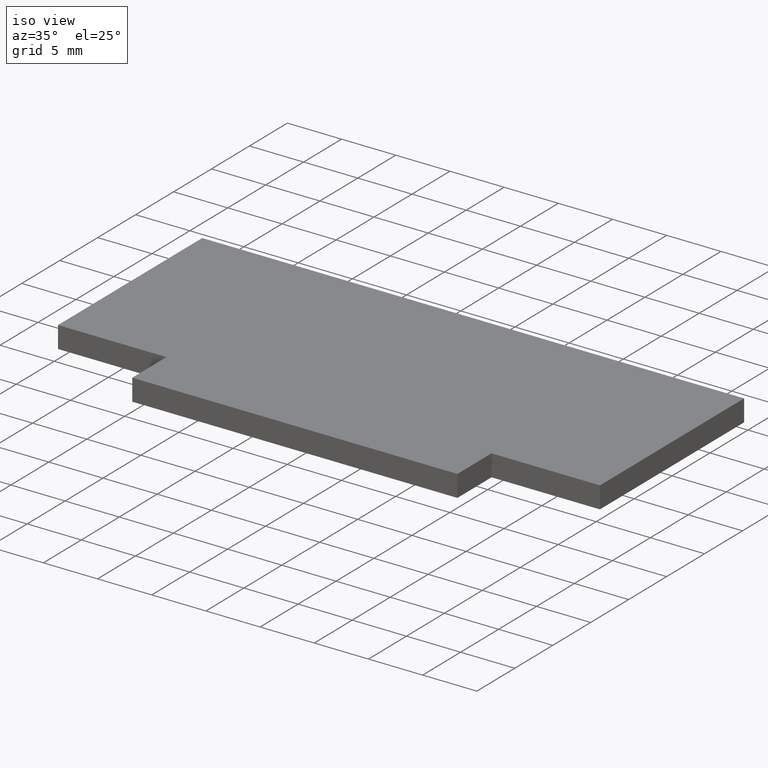
[diagram: clean part render]
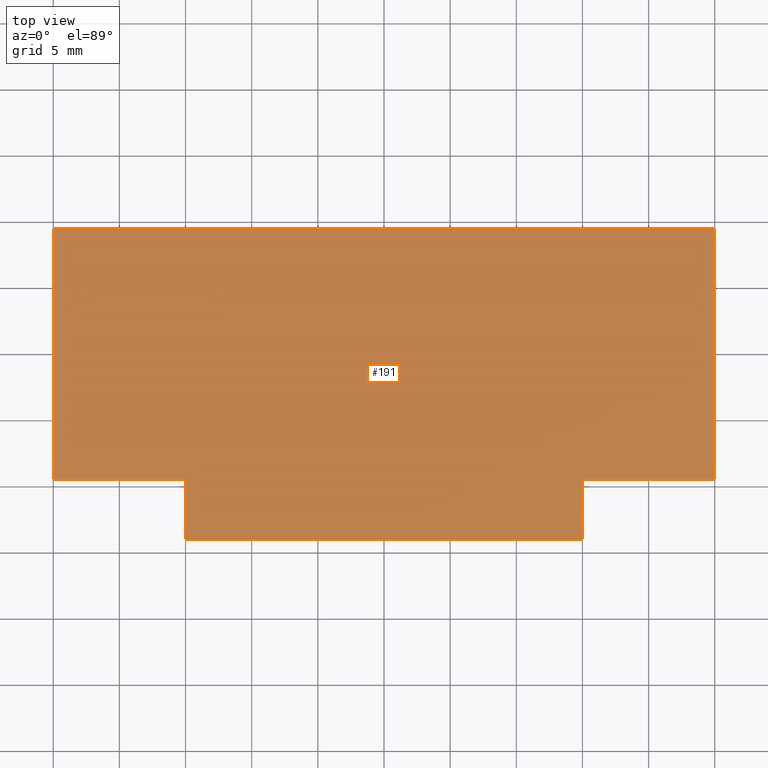
[diagram: tour spotlight — one face highlighted and labeled with its STEP entity id]
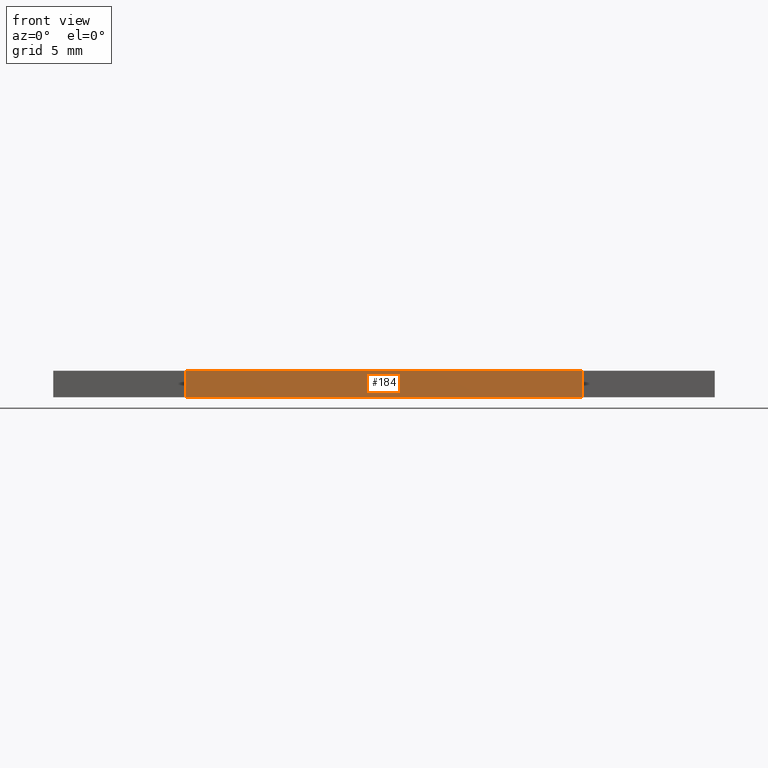
[diagram: tour spotlight — one face highlighted and labeled with its STEP entity id]
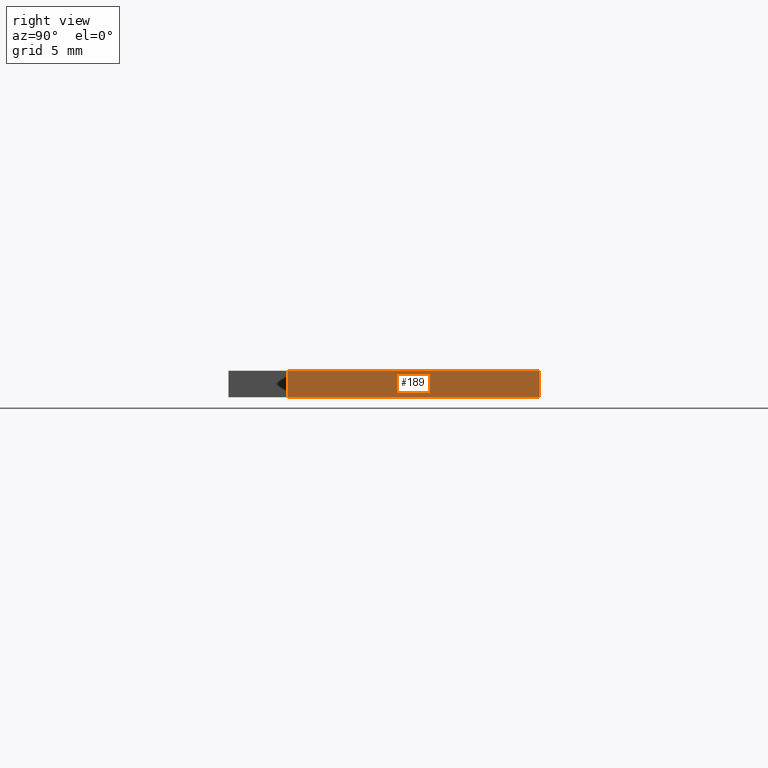
[diagram: tour spotlight — one face highlighted and labeled with its STEP entity id]
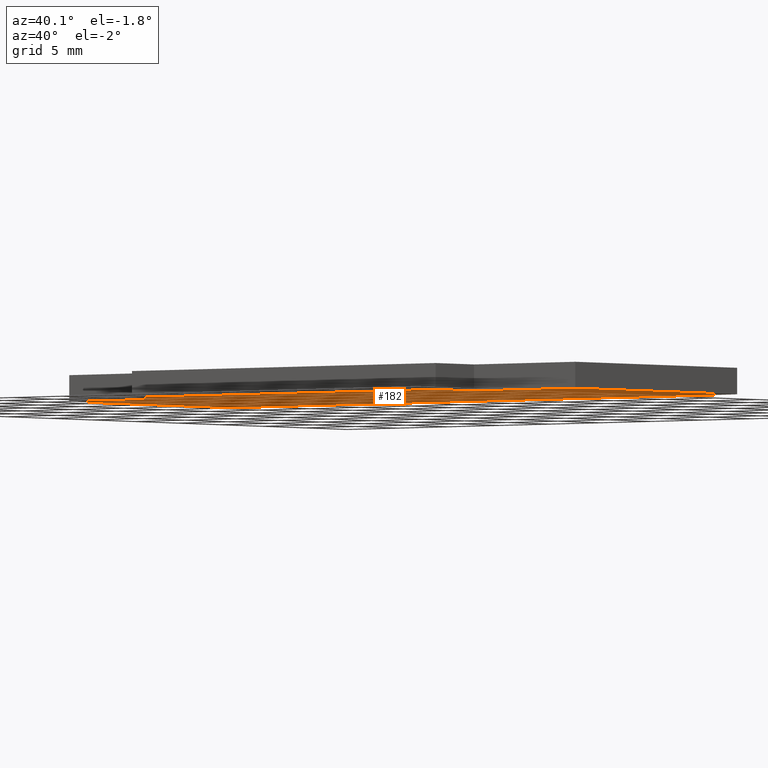
[diagram: tour spotlight — one face highlighted and labeled with its STEP entity id]
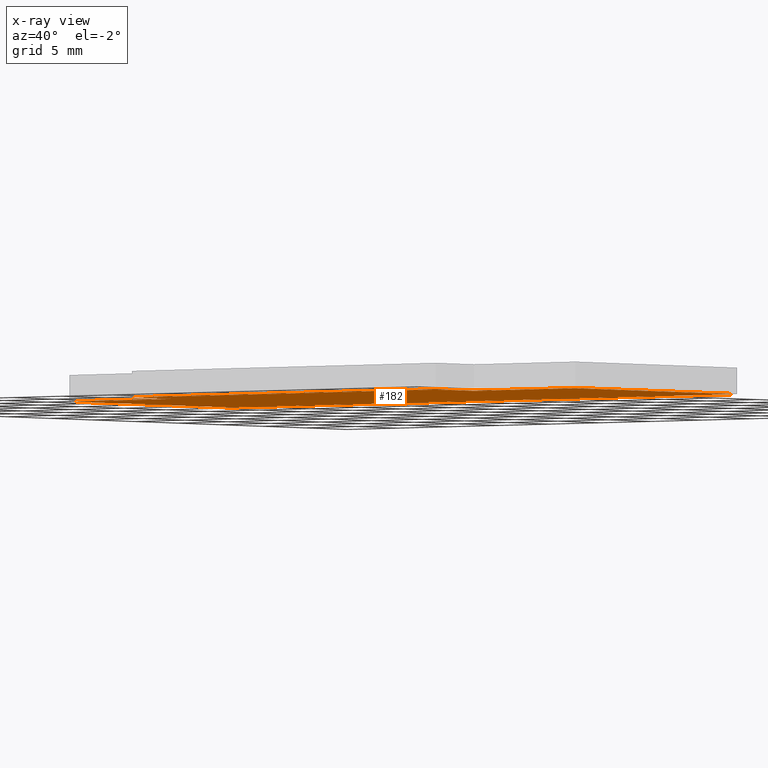
[diagram: x-ray of the same camera — body ghosted, this tour face saturated]
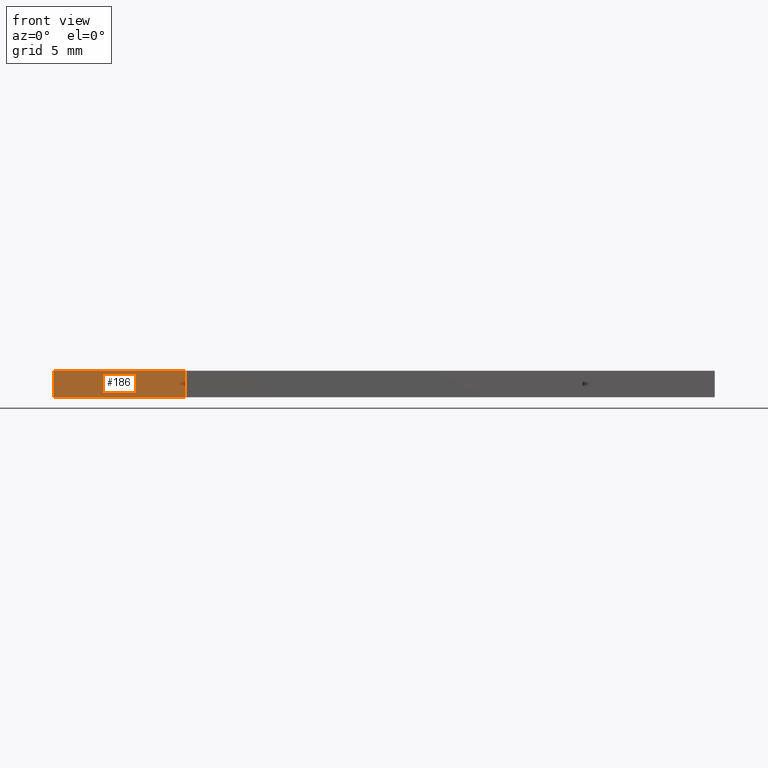
[diagram: tour spotlight — one face highlighted and labeled with its STEP entity id]
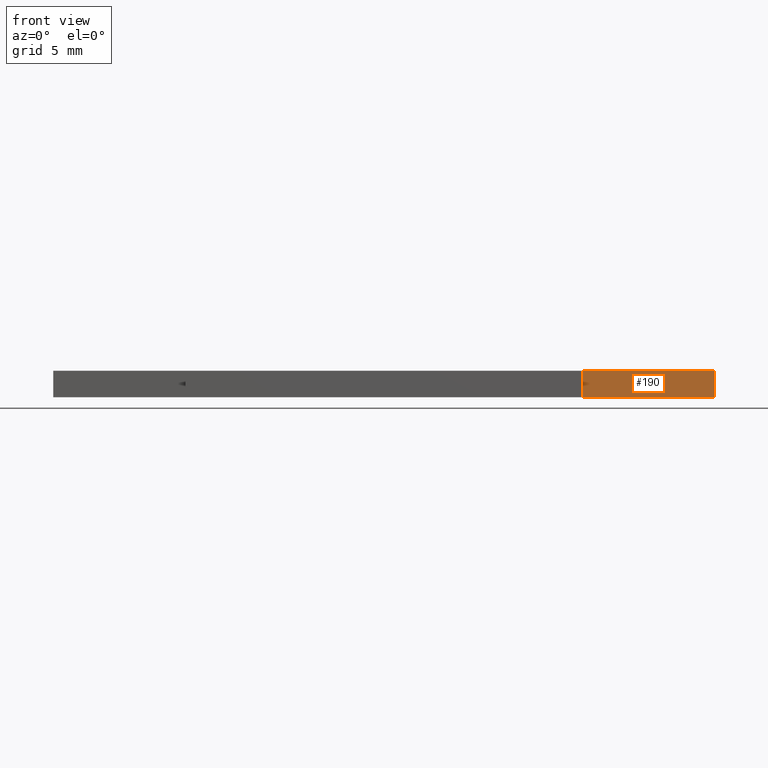
[diagram: tour spotlight — one face highlighted and labeled with its STEP entity id]
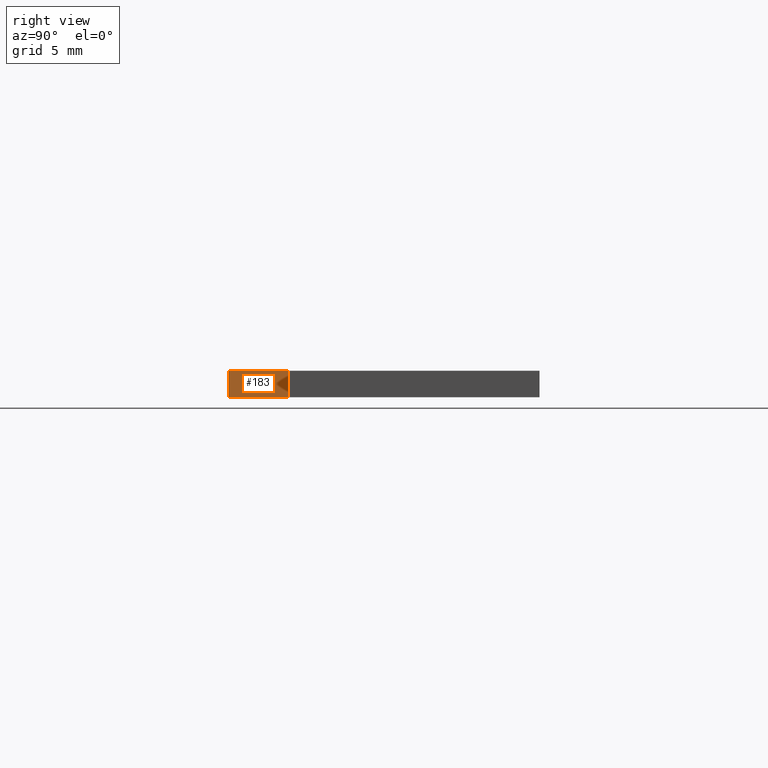
[diagram: tour spotlight — one face highlighted and labeled with its STEP entity id]
A machine part: a face-by-face anatomy tour. The part has 10 B-rep faces; the first image is the clean iso view, then the 7 largest visible faces are spotlighted one at a time (largest first), each with its STEP entity span.

Face 1 — top view, entity #191. In plain terms, the highlighted planar face has unit normal (0, 0, 1).
Definition (entity closure, byte-faithful):
#25=FACE_OUTER_BOUND('',#35,.T.);
#35=EDGE_LOOP('',(#164,#165,#166,#167,#168,#169,#170,#171));
#44=LINE('',#289,#68);
#47=LINE('',#294,#71);
#49=LINE('',#298,#73);
#51=LINE('',#302,#75);
#53=LINE('',#306,#77);
#55=LINE('',#310,#79);
#57=LINE('',#314,#81);
#59=LINE('',#317,#83);
#68=VECTOR('',#236,10.);
#71=VECTOR('',#241,10.);
#73=VECTOR('',#245,10.);
#75=VECTOR('',#249,10.);
#77=VECTOR('',#253,10.);
#79=VECTOR('',#257,10.);
#81=VECTOR('',#261,10.);
#83=VECTOR('',#265,10.);
#92=VERTEX_POINT('',#287);
#93=VERTEX_POINT('',#288);
#94=VERTEX_POINT('',#293);
#95=VERTEX_POINT('',#297);
#96=VERTEX_POINT('',#301);
#97=VERTEX_POINT('',#305);
#98=VERTEX_POINT('',#309);
#99=VERTEX_POINT('',#313);
#108=EDGE_CURVE('',#92,#93,#44,.T.);
#111=EDGE_CURVE('',#93,#94,#47,.T.);
#113=EDGE_CURVE('',#94,#95,#49,.T.);
#115=EDGE_CURVE('',#95,#96,#51,.T.);
#117=EDGE_CURVE('',#96,#97,#53,.T.);
#119=EDGE_CURVE('',#97,#98,#55,.T.);
#121=EDGE_CURVE('',#98,#99,#57,.T.);
#123=EDGE_CURVE('',#99,#92,#59,.T.);
#164=ORIENTED_EDGE('',*,*,#108,.F.);
#165=ORIENTED_EDGE('',*,*,#123,.F.);
#166=ORIENTED_EDGE('',*,*,#121,.F.);
#167=ORIENTED_EDGE('',*,*,#119,.F.);
#168=ORIENTED_EDGE('',*,*,#117,.F.);
#169=ORIENTED_EDGE('',*,*,#115,.F.);
#170=ORIENTED_EDGE('',*,*,#113,.F.);
#171=ORIENTED_EDGE('',*,*,#111,.F.);
#181=PLANE('',#221);
#191=ADVANCED_FACE('',(#25),#181,.T.);
#221=AXIS2_PLACEMENT_3D('',#318,#266,#267);
#236=DIRECTION('',(0.,-1.,0.));
#241=DIRECTION('',(-1.,0.,0.));
#245=DIRECTION('',(0.,1.,0.));
#249=DIRECTION('',(-1.,-1.11022302462516E-16,0.));
#253=DIRECTION('',(2.3373116307898E-16,1.,0.));
#257=DIRECTION('',(1.,-2.22044604925031E-17,0.));
#261=DIRECTION('',(0.,-1.,0.));
#265=DIRECTION('',(-1.,8.88178419700125E-16,0.));
#266=DIRECTION('center_axis',(0.,0.,1.));
#267=DIRECTION('ref_axis',(1.,0.,0.));
#287=CARTESIAN_POINT('',(15.,-9.49999999999999,1.));
#288=CARTESIAN_POINT('',(15.,-14.,1.));
#289=CARTESIAN_POINT('',(15.,-9.49999999999999,1.));
#293=CARTESIAN_POINT('',(-15.,-14.,1.));
#294=CARTESIAN_POINT('',(15.,-14.,1.));
#297=CARTESIAN_POINT('',(-15.,-9.49999999999999,1.));
#298=CARTESIAN_POINT('',(-15.,-14.,1.));
#301=CARTESIAN_POINT('',(-25.,-9.5,1.));
#302=CARTESIAN_POINT('',(-15.,-9.49999999999999,1.));
#305=CARTESIAN_POINT('',(-25.,9.50000000000001,1.));
#306=CARTESIAN_POINT('',(-25.,-9.5,1.));
#309=CARTESIAN_POINT('',(25.,9.5,1.));
#310=CARTESIAN_POINT('',(-25.,9.50000000000001,1.));
#313=CARTESIAN_POINT('',(25.,-9.5,1.));
#314=CARTESIAN_POINT('',(25.,9.5,1.));
#317=CARTESIAN_POINT('',(25.,-9.5,1.));
#318=CARTESIAN_POINT('Origin',(1.17961196366423E-15,-1.63775510204082,1.));

Face 2 — front view, entity #184. In plain terms, the highlighted planar face has unit normal (0, -1, 0).
Definition (entity closure, byte-faithful):
#18=FACE_OUTER_BOUND('',#28,.T.);
#28=EDGE_LOOP('',(#136,#137,#138,#139));
#39=LINE('',#278,#63);
#45=LINE('',#290,#69);
#47=LINE('',#294,#71);
#48=LINE('',#295,#72);
#63=VECTOR('',#229,10.);
#69=VECTOR('',#237,10.);
#71=VECTOR('',#241,10.);
#72=VECTOR('',#242,10.);
#87=VERTEX_POINT('',#275);
#88=VERTEX_POINT('',#277);
#93=VERTEX_POINT('',#288);
#94=VERTEX_POINT('',#293);
#103=EDGE_CURVE('',#88,#87,#39,.T.);
#109=EDGE_CURVE('',#93,#87,#45,.T.);
#111=EDGE_CURVE('',#93,#94,#47,.T.);
#112=EDGE_CURVE('',#94,#88,#48,.T.);
#136=ORIENTED_EDGE('',*,*,#111,.T.);
#137=ORIENTED_EDGE('',*,*,#112,.T.);
#138=ORIENTED_EDGE('',*,*,#103,.T.);
#139=ORIENTED_EDGE('',*,*,#109,.F.);
#174=PLANE('',#214);
#184=ADVANCED_FACE('',(#18),#174,.T.);
#214=AXIS2_PLACEMENT_3D('',#292,#239,#240);
#229=DIRECTION('',(1.,0.,0.));
#237=DIRECTION('',(0.,0.,-1.));
#239=DIRECTION('center_axis',(0.,-1.,0.));
#240=DIRECTION('ref_axis',(0.,0.,-1.));
#241=DIRECTION('',(-1.,0.,0.));
#242=DIRECTION('',(0.,0.,-1.));
#275=CARTESIAN_POINT('',(15.,-14.,-1.));
#277=CARTESIAN_POINT('',(-15.,-14.,-1.));
#278=CARTESIAN_POINT('',(15.,-14.,-1.));
#288=CARTESIAN_POINT('',(15.,-14.,1.));
#290=CARTESIAN_POINT('',(15.,-14.,0.));
#292=CARTESIAN_POINT('Origin',(15.,-14.,0.));
#293=CARTESIAN_POINT('',(-15.,-14.,1.));
#294=CARTESIAN_POINT('',(15.,-14.,1.));
#295=CARTESIAN_POINT('',(-15.,-14.,0.));

Face 3 — right view, entity #189. In plain terms, the highlighted planar face has unit normal (1, 0, 0).
Definition (entity closure, byte-faithful):
#23=FACE_OUTER_BOUND('',#33,.T.);
#33=EDGE_LOOP('',(#156,#157,#158,#159));
#36=LINE('',#272,#60);
#56=LINE('',#311,#80);
#57=LINE('',#314,#81);
#58=LINE('',#315,#82);
#60=VECTOR('',#226,10.);
#80=VECTOR('',#258,10.);
#81=VECTOR('',#261,10.);
#82=VECTOR('',#262,10.);
#84=VERTEX_POINT('',#270);
#85=VERTEX_POINT('',#271);
#98=VERTEX_POINT('',#309);
#99=VERTEX_POINT('',#313);
#100=EDGE_CURVE('',#84,#85,#36,.T.);
#120=EDGE_CURVE('',#98,#85,#56,.T.);
#121=EDGE_CURVE('',#98,#99,#57,.T.);
#122=EDGE_CURVE('',#84,#99,#58,.T.);
#156=ORIENTED_EDGE('',*,*,#121,.T.);
#157=ORIENTED_EDGE('',*,*,#122,.F.);
#158=ORIENTED_EDGE('',*,*,#100,.T.);
#159=ORIENTED_EDGE('',*,*,#120,.F.);
#179=PLANE('',#219);
#189=ADVANCED_FACE('',(#23),#179,.T.);
#219=AXIS2_PLACEMENT_3D('',#312,#259,#260);
#226=DIRECTION('',(0.,1.,0.));
#258=DIRECTION('',(0.,0.,-1.));
#259=DIRECTION('center_axis',(1.,0.,0.));
#260=DIRECTION('ref_axis',(0.,0.,-1.));
#261=DIRECTION('',(0.,-1.,0.));
#262=DIRECTION('',(0.,0.,1.));
#270=CARTESIAN_POINT('',(25.,-9.5,-1.));
#271=CARTESIAN_POINT('',(25.,9.5,-1.));
#272=CARTESIAN_POINT('',(25.,9.5,-1.));
#309=CARTESIAN_POINT('',(25.,9.5,1.));
#311=CARTESIAN_POINT('',(25.,9.5,0.));
#312=CARTESIAN_POINT('Origin',(25.,9.5,0.));
#313=CARTESIAN_POINT('',(25.,-9.5,1.));
#314=CARTESIAN_POINT('',(25.,9.5,1.));
#315=CARTESIAN_POINT('',(25.,-9.5,0.));

Face 4 — auxiliary view, entity #182. An x-ray twin of the same camera follows (body ghosted, this face saturated) — the face is partly hidden behind the body. In plain terms, the highlighted planar face has unit normal (0, 0, 1).
Definition (entity closure, byte-faithful):
#16=FACE_OUTER_BOUND('',#26,.T.);
#26=EDGE_LOOP('',(#124,#125,#126,#127,#128,#129,#130,#131));
#36=LINE('',#272,#60);
#37=LINE('',#274,#61);
#38=LINE('',#276,#62);
#39=LINE('',#278,#63);
#40=LINE('',#280,#64);
#41=LINE('',#282,#65);
#42=LINE('',#284,#66);
#43=LINE('',#285,#67);
#60=VECTOR('',#226,10.);
#61=VECTOR('',#227,10.);
#62=VECTOR('',#228,10.);
#63=VECTOR('',#229,10.);
#64=VECTOR('',#230,10.);
#65=VECTOR('',#231,10.);
#66=VECTOR('',#232,10.);
#67=VECTOR('',#233,10.);
#84=VERTEX_POINT('',#270);
#85=VERTEX_POINT('',#271);
#86=VERTEX_POINT('',#273);
#87=VERTEX_POINT('',#275);
#88=VERTEX_POINT('',#277);
#89=VERTEX_POINT('',#279);
#90=VERTEX_POINT('',#281);
#91=VERTEX_POINT('',#283);
#100=EDGE_CURVE('',#84,#85,#36,.T.);
#101=EDGE_CURVE('',#86,#84,#37,.T.);
#102=EDGE_CURVE('',#87,#86,#38,.T.);
#103=EDGE_CURVE('',#88,#87,#39,.T.);
#104=EDGE_CURVE('',#89,#88,#40,.T.);
#105=EDGE_CURVE('',#90,#89,#41,.T.);
#106=EDGE_CURVE('',#91,#90,#42,.T.);
#107=EDGE_CURVE('',#85,#91,#43,.T.);
#124=ORIENTED_EDGE('',*,*,#100,.F.);
#125=ORIENTED_EDGE('',*,*,#101,.F.);
#126=ORIENTED_EDGE('',*,*,#102,.F.);
#127=ORIENTED_EDGE('',*,*,#103,.F.);
#128=ORIENTED_EDGE('',*,*,#104,.F.);
#129=ORIENTED_EDGE('',*,*,#105,.F.);
#130=ORIENTED_EDGE('',*,*,#106,.F.);
#131=ORIENTED_EDGE('',*,*,#107,.F.);
#172=PLANE('',#212);
#182=ADVANCED_FACE('',(#16),#172,.F.);
#212=AXIS2_PLACEMENT_3D('',#269,#224,#225);
#224=DIRECTION('center_axis',(0.,0.,1.));
#225=DIRECTION('ref_axis',(1.,0.,0.));
#226=DIRECTION('',(0.,1.,0.));
#227=DIRECTION('',(1.,-8.88178419700125E-16,0.));
#228=DIRECTION('',(0.,1.,0.));
#229=DIRECTION('',(1.,0.,0.));
#230=DIRECTION('',(0.,-1.,0.));
#231=DIRECTION('',(1.,1.11022302462516E-16,0.));
#232=DIRECTION('',(-2.3373116307898E-16,-1.,0.));
#233=DIRECTION('',(-1.,2.22044604925031E-17,0.));
#269=CARTESIAN_POINT('Origin',(1.11022302462516E-15,-1.63775510204082,-1.));
#270=CARTESIAN_POINT('',(25.,-9.5,-1.));
#271=CARTESIAN_POINT('',(25.,9.5,-1.));
#272=CARTESIAN_POINT('',(25.,9.5,-1.));
#273=CARTESIAN_POINT('',(15.,-9.49999999999999,-1.));
#274=CARTESIAN_POINT('',(25.,-9.5,-1.));
#275=CARTESIAN_POINT('',(15.,-14.,-1.));
#276=CARTESIAN_POINT('',(15.,-9.49999999999999,-1.));
#277=CARTESIAN_POINT('',(-15.,-14.,-1.));
#278=CARTESIAN_POINT('',(15.,-14.,-1.));
#279=CARTESIAN_POINT('',(-15.,-9.49999999999999,-1.));
#280=CARTESIAN_POINT('',(-15.,-14.,-1.));
#281=CARTESIAN_POINT('',(-25.,-9.5,-1.));
#282=CARTESIAN_POINT('',(-15.,-9.49999999999999,-1.));
#283=CARTESIAN_POINT('',(-25.,9.50000000000001,-1.));
#284=CARTESIAN_POINT('',(-25.,-9.5,-1.));
#285=CARTESIAN_POINT('',(-25.,9.50000000000001,-1.));

Face 5 — front view, entity #186. In plain terms, the highlighted planar face has unit normal (0, -1, 0).
Definition (entity closure, byte-faithful):
#20=FACE_OUTER_BOUND('',#30,.T.);
#30=EDGE_LOOP('',(#144,#145,#146,#147));
#41=LINE('',#282,#65);
#50=LINE('',#299,#74);
#51=LINE('',#302,#75);
#52=LINE('',#303,#76);
#65=VECTOR('',#231,10.);
#74=VECTOR('',#246,10.);
#75=VECTOR('',#249,10.);
#76=VECTOR('',#250,10.);
#89=VERTEX_POINT('',#279);
#90=VERTEX_POINT('',#281);
#95=VERTEX_POINT('',#297);
#96=VERTEX_POINT('',#301);
#105=EDGE_CURVE('',#90,#89,#41,.T.);
#114=EDGE_CURVE('',#95,#89,#50,.T.);
#115=EDGE_CURVE('',#95,#96,#51,.T.);
#116=EDGE_CURVE('',#96,#90,#52,.T.);
#144=ORIENTED_EDGE('',*,*,#115,.T.);
#145=ORIENTED_EDGE('',*,*,#116,.T.);
#146=ORIENTED_EDGE('',*,*,#105,.T.);
#147=ORIENTED_EDGE('',*,*,#114,.F.);
#176=PLANE('',#216);
#186=ADVANCED_FACE('',(#20),#176,.T.);
#216=AXIS2_PLACEMENT_3D('',#300,#247,#248);
#231=DIRECTION('',(1.,1.11022302462516E-16,0.));
#246=DIRECTION('',(0.,0.,-1.));
#247=DIRECTION('center_axis',(1.11022302462516E-16,-1.,0.));
#248=DIRECTION('ref_axis',(0.,0.,-1.));
#249=DIRECTION('',(-1.,-1.11022302462516E-16,0.));
#250=DIRECTION('',(0.,0.,-1.));
#279=CARTESIAN_POINT('',(-15.,-9.49999999999999,-1.));
#281=CARTESIAN_POINT('',(-25.,-9.5,-1.));
#282=CARTESIAN_POINT('',(-15.,-9.49999999999999,-1.));
#297=CARTESIAN_POINT('',(-15.,-9.49999999999999,1.));
#299=CARTESIAN_POINT('',(-15.,-9.49999999999999,0.));
#300=CARTESIAN_POINT('Origin',(-15.,-9.49999999999999,0.));
#301=CARTESIAN_POINT('',(-25.,-9.5,1.));
#302=CARTESIAN_POINT('',(-15.,-9.49999999999999,1.));
#303=CARTESIAN_POINT('',(-25.,-9.5,0.));

Face 6 — front view, entity #190. In plain terms, the highlighted planar face has unit normal (-0, -1, 0).
Definition (entity closure, byte-faithful):
#24=FACE_OUTER_BOUND('',#34,.T.);
#34=EDGE_LOOP('',(#160,#161,#162,#163));
#37=LINE('',#274,#61);
#46=LINE('',#291,#70);
#58=LINE('',#315,#82);
#59=LINE('',#317,#83);
#61=VECTOR('',#227,10.);
#70=VECTOR('',#238,10.);
#82=VECTOR('',#262,10.);
#83=VECTOR('',#265,10.);
#84=VERTEX_POINT('',#270);
#86=VERTEX_POINT('',#273);
#92=VERTEX_POINT('',#287);
#99=VERTEX_POINT('',#313);
#101=EDGE_CURVE('',#86,#84,#37,.T.);
#110=EDGE_CURVE('',#92,#86,#46,.T.);
#122=EDGE_CURVE('',#84,#99,#58,.T.);
#123=EDGE_CURVE('',#99,#92,#59,.T.);
#160=ORIENTED_EDGE('',*,*,#123,.T.);
#161=ORIENTED_EDGE('',*,*,#110,.T.);
#162=ORIENTED_EDGE('',*,*,#101,.T.);
#163=ORIENTED_EDGE('',*,*,#122,.T.);
#180=PLANE('',#220);
#190=ADVANCED_FACE('',(#24),#180,.T.);
#220=AXIS2_PLACEMENT_3D('',#316,#263,#264);
#227=DIRECTION('',(1.,-8.88178419700125E-16,0.));
#238=DIRECTION('',(0.,0.,-1.));
#262=DIRECTION('',(0.,0.,1.));
#263=DIRECTION('center_axis',(-8.88178419700125E-16,-1.,0.));
#264=DIRECTION('ref_axis',(0.,0.,-1.));
#265=DIRECTION('',(-1.,8.88178419700125E-16,0.));
#270=CARTESIAN_POINT('',(25.,-9.5,-1.));
#273=CARTESIAN_POINT('',(15.,-9.49999999999999,-1.));
#274=CARTESIAN_POINT('',(25.,-9.5,-1.));
#287=CARTESIAN_POINT('',(15.,-9.49999999999999,1.));
#291=CARTESIAN_POINT('',(15.,-9.49999999999999,0.));
#313=CARTESIAN_POINT('',(25.,-9.5,1.));
#315=CARTESIAN_POINT('',(25.,-9.5,0.));
#316=CARTESIAN_POINT('Origin',(25.,-9.5,0.));
#317=CARTESIAN_POINT('',(25.,-9.5,1.));

Face 7 — right view, entity #183. In plain terms, the highlighted planar face has unit normal (1, 0, 0).
Definition (entity closure, byte-faithful):
#17=FACE_OUTER_BOUND('',#27,.T.);
#27=EDGE_LOOP('',(#132,#133,#134,#135));
#38=LINE('',#276,#62);
#44=LINE('',#289,#68);
#45=LINE('',#290,#69);
#46=LINE('',#291,#70);
#62=VECTOR('',#228,10.);
#68=VECTOR('',#236,10.);
#69=VECTOR('',#237,10.);
#70=VECTOR('',#238,10.);
#86=VERTEX_POINT('',#273);
#87=VERTEX_POINT('',#275);
#92=VERTEX_POINT('',#287);
#93=VERTEX_POINT('',#288);
#102=EDGE_CURVE('',#87,#86,#38,.T.);
#108=EDGE_CURVE('',#92,#93,#44,.T.);
#109=EDGE_CURVE('',#93,#87,#45,.T.);
#110=EDGE_CURVE('',#92,#86,#46,.T.);
#132=ORIENTED_EDGE('',*,*,#108,.T.);
#133=ORIENTED_EDGE('',*,*,#109,.T.);
#134=ORIENTED_EDGE('',*,*,#102,.T.);
#135=ORIENTED_EDGE('',*,*,#110,.F.);
#173=PLANE('',#213);
#183=ADVANCED_FACE('',(#17),#173,.T.);
#213=AXIS2_PLACEMENT_3D('',#286,#234,#235);
#228=DIRECTION('',(0.,1.,0.));
#234=DIRECTION('center_axis',(1.,0.,0.));
#235=DIRECTION('ref_axis',(0.,0.,-1.));
#236=DIRECTION('',(0.,-1.,0.));
#237=DIRECTION('',(0.,0.,-1.));
#238=DIRECTION('',(0.,0.,-1.));
#273=CARTESIAN_POINT('',(15.,-9.49999999999999,-1.));
#275=CARTESIAN_POINT('',(15.,-14.,-1.));
#276=CARTESIAN_POINT('',(15.,-9.49999999999999,-1.));
#286=CARTESIAN_POINT('Origin',(15.,-9.49999999999999,0.));
#287=CARTESIAN_POINT('',(15.,-9.49999999999999,1.));
#288=CARTESIAN_POINT('',(15.,-14.,1.));
#289=CARTESIAN_POINT('',(15.,-9.49999999999999,1.));
#290=CARTESIAN_POINT('',(15.,-14.,0.));
#291=CARTESIAN_POINT('',(15.,-9.49999999999999,0.));